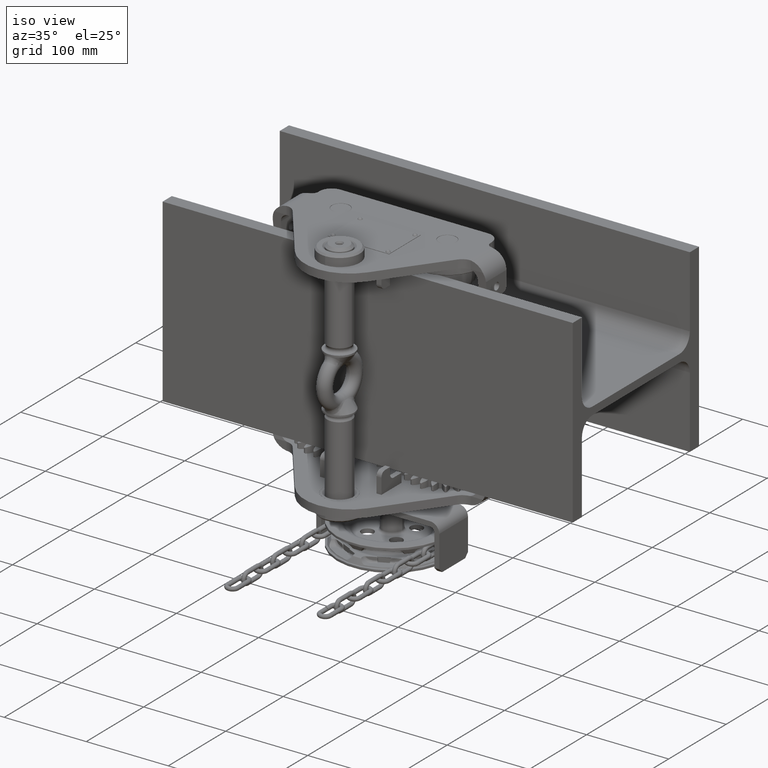
[diagram: clean part render]
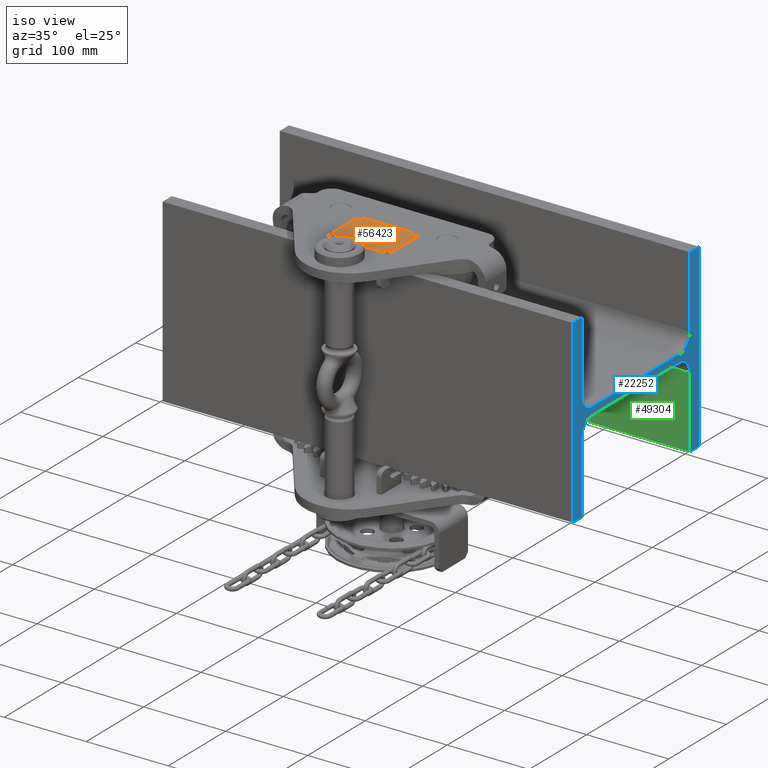
[diagram: same view with three faces highlighted in distinct colors, each labeled with its STEP entity id]
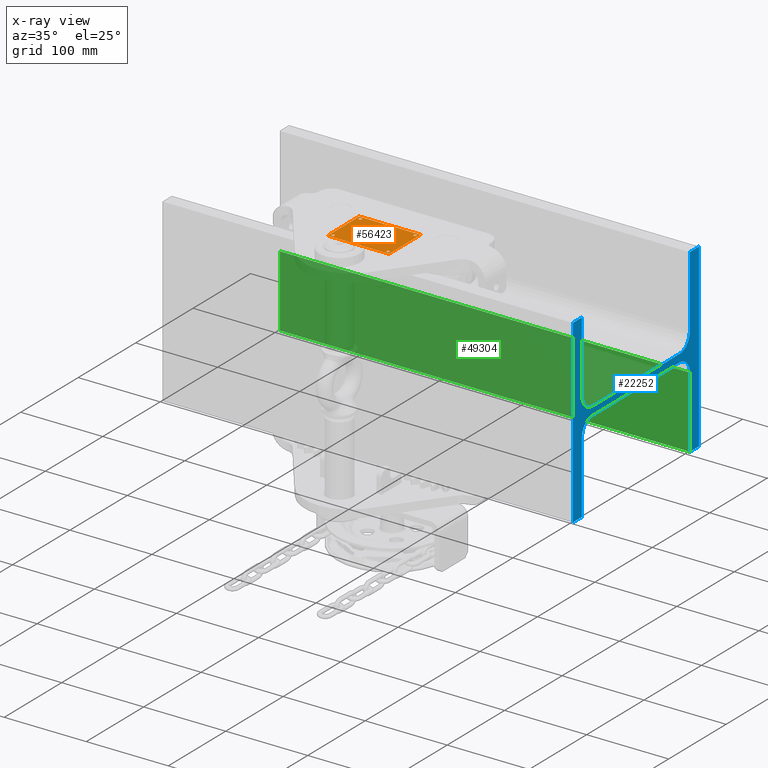
[diagram: x-ray of the same camera — body ghosted, the three highlighted faces saturated]
A machine part, iso view with three faces highlighted in distinct colors.
The next image is the same camera in x-ray (body ghosted, the three faces saturated) — at least one of them is partly hidden behind the body in this view.
Their STEP definitions:

[orange] entity #56423 — the highlighted planar face has unit normal (0, 0, -1).
#916 = AXIS2_PLACEMENT_3D ( 'NONE', #44228, #10586, #11320 ) ;
#1070 = ORIENTED_EDGE ( 'NONE', *, *, #31101, .F. ) ;
#1258 = EDGE_CURVE ( 'NONE', #96462, #48862, #73416, .T. ) ;
#2820 = EDGE_CURVE ( 'NONE', #25566, #58727, #81354, .T. ) ;
#4038 = DIRECTION ( 'NONE',  ( 1.000000000000000000, 0.0000000000000000000, 0.0000000000000000000 ) ) ;
#4072 = VECTOR ( 'NONE', #4038, 1000.000000000000000 ) ;
#4355 = CIRCLE ( 'NONE', #53322, 1.749999999999994700 ) ;
#4373 = CARTESIAN_POINT ( 'NONE',  ( -37.49999999999999300, -126.2990324144097700, 135.5000000000000000 ) ) ;
#4875 = CIRCLE ( 'NONE', #55349, 1.750000000000001600 ) ;
#6442 = DIRECTION ( 'NONE',  ( 1.000000000000000000, 0.0000000000000000000, 0.0000000000000000000 ) ) ;
#6600 = DIRECTION ( 'NONE',  ( -1.000000000000000000, 0.0000000000000000000, -0.0000000000000000000 ) ) ;
#8162 = DIRECTION ( 'NONE',  ( 0.0000000000000000000, 1.000000000000000000, 0.0000000000000000000 ) ) ;
#10465 = AXIS2_PLACEMENT_3D ( 'NONE', #59604, #98405, #35253 ) ;
#10586 = DIRECTION ( 'NONE',  ( 0.0000000000000000000, 0.0000000000000000000, 1.000000000000000000 ) ) ;
#11047 = EDGE_LOOP ( 'NONE', ( #45878, #41474 ) ) ;
#11233 = CARTESIAN_POINT ( 'NONE',  ( -37.49999999999999300, -126.2990324144097700, 135.5000000000000000 ) ) ;
#11320 = DIRECTION ( 'NONE',  ( 1.000000000000000000, 0.0000000000000000000, 0.0000000000000000000 ) ) ;
#11876 = CARTESIAN_POINT ( 'NONE',  ( 37.50000000000002100, -126.2990324144097700, 135.5000000000000000 ) ) ;
#12742 = CARTESIAN_POINT ( 'NONE',  ( -37.49999999999999300, -126.2990324144097700, 135.5000000000000000 ) ) ;
#15952 = FACE_BOUND ( 'NONE', #31548, .T. ) ;
#17796 = CARTESIAN_POINT ( 'NONE',  ( 33.50000000000001400, -122.2990324144097700, 135.5000000000000000 ) ) ;
#20381 = CARTESIAN_POINT ( 'NONE',  ( -35.24999999999999300, -122.2990324144097700, 135.5000000000000000 ) ) ;
#22285 = CARTESIAN_POINT ( 'NONE',  ( -37.49999999999999300, -71.29903241440976600, 135.5000000000000000 ) ) ;
#22952 = CARTESIAN_POINT ( 'NONE',  ( 35.25000000000000700, -75.29903241440975100, 135.5000000000000000 ) ) ;
#23682 = ORIENTED_EDGE ( 'NONE', *, *, #36969, .F. ) ;
#24672 = FACE_BOUND ( 'NONE', #35417, .T. ) ;
#25566 = VERTEX_POINT ( 'NONE', #39682 ) ;
#26970 = ORIENTED_EDGE ( 'NONE', *, *, #49784, .T. ) ;
#27273 = LINE ( 'NONE', #79842, #82255 ) ;
#27778 = CARTESIAN_POINT ( 'NONE',  ( 31.75000000000002100, -75.29903241440975100, 135.5000000000000000 ) ) ;
#28083 = DIRECTION ( 'NONE',  ( 1.000000000000000000, 0.0000000000000000000, 0.0000000000000000000 ) ) ;
#29707 = CIRCLE ( 'NONE', #916, 1.750000000000001600 ) ;
#30936 = DIRECTION ( 'NONE',  ( 0.0000000000000000000, 0.0000000000000000000, 1.000000000000000000 ) ) ;
#30965 = EDGE_CURVE ( 'NONE', #46223, #57460, #70653, .T. ) ;
#31101 = EDGE_CURVE ( 'NONE', #66856, #72474, #4355, .T. ) ;
#31548 = EDGE_LOOP ( 'NONE', ( #92344, #23682 ) ) ;
#31630 = AXIS2_PLACEMENT_3D ( 'NONE', #103322, #32857, #88341 ) ;
#32857 = DIRECTION ( 'NONE',  ( 0.0000000000000000000, 0.0000000000000000000, 1.000000000000000000 ) ) ;
#35068 = CARTESIAN_POINT ( 'NONE',  ( 31.75000000000002100, -122.2990324144097700, 135.5000000000000000 ) ) ;
#35253 = DIRECTION ( 'NONE',  ( 1.000000000000000000, 0.0000000000000000000, 0.0000000000000000000 ) ) ;
#35417 = EDGE_LOOP ( 'NONE', ( #86936, #81871 ) ) ;
#35953 = VERTEX_POINT ( 'NONE', #11876 ) ;
#36969 = EDGE_CURVE ( 'NONE', #58727, #25566, #4875, .T. ) ;
#37740 = CARTESIAN_POINT ( 'NONE',  ( 33.50000000000001400, -75.29903241440975100, 135.5000000000000000 ) ) ;
#38018 = CARTESIAN_POINT ( 'NONE',  ( 33.50000000000001400, -75.29903241440975100, 135.5000000000000000 ) ) ;
#38424 = DIRECTION ( 'NONE',  ( 0.0000000000000000000, 0.0000000000000000000, -1.000000000000000000 ) ) ;
#39682 = CARTESIAN_POINT ( 'NONE',  ( -31.74999999999998600, -75.29903241440975100, 135.5000000000000000 ) ) ;
#39790 = AXIS2_PLACEMENT_3D ( 'NONE', #37740, #94201, #62822 ) ;
#40290 = CARTESIAN_POINT ( 'NONE',  ( -35.24999999999999300, -75.29903241440975100, 135.5000000000000000 ) ) ;
#41063 = EDGE_CURVE ( 'NONE', #47613, #96462, #48011, .T. ) ;
#41474 = ORIENTED_EDGE ( 'NONE', *, *, #41739, .F. ) ;
#41739 = EDGE_CURVE ( 'NONE', #51741, #91406, #29707, .T. ) ;
#42414 = CIRCLE ( 'NONE', #89568, 1.749999999999994700 ) ;
#44228 = CARTESIAN_POINT ( 'NONE',  ( -33.49999999999998600, -122.2990324144097700, 135.5000000000000000 ) ) ;
#44804 = EDGE_CURVE ( 'NONE', #91406, #51741, #60180, .T. ) ;
#45878 = ORIENTED_EDGE ( 'NONE', *, *, #44804, .F. ) ;
#46223 = VERTEX_POINT ( 'NONE', #27778 ) ;
#47613 = VERTEX_POINT ( 'NONE', #54599 ) ;
#48011 = LINE ( 'NONE', #64002, #89297 ) ;
#48281 = EDGE_LOOP ( 'NONE', ( #80904, #26970, #58239, #69365 ) ) ;
#48862 = VERTEX_POINT ( 'NONE', #11233 ) ;
#49784 = EDGE_CURVE ( 'NONE', #48862, #35953, #77890, .T. ) ;
#51483 = AXIS2_PLACEMENT_3D ( 'NONE', #22285, #38424, #6600 ) ;
#51741 = VERTEX_POINT ( 'NONE', #20381 ) ;
#51939 = AXIS2_PLACEMENT_3D ( 'NONE', #38018, #94163, #92115 ) ;
#53269 = DIRECTION ( 'NONE',  ( -0.0000000000000000000, -1.000000000000000000, -0.0000000000000000000 ) ) ;
#53322 = AXIS2_PLACEMENT_3D ( 'NONE', #82953, #75978, #28083 ) ;
#54599 = CARTESIAN_POINT ( 'NONE',  ( 37.50000000000002100, -71.29903241440976600, 135.5000000000000000 ) ) ;
#55349 = AXIS2_PLACEMENT_3D ( 'NONE', #103180, #30936, #6442 ) ;
#56105 = EDGE_CURVE ( 'NONE', #72474, #66856, #42414, .T. ) ;
#56423 = ADVANCED_FACE ( 'NONE', ( #80940, #95981, #24672, #15952, #75982 ), #78943, .F. ) ;
#56698 = DIRECTION ( 'NONE',  ( -1.000000000000000000, -0.0000000000000000000, -0.0000000000000000000 ) ) ;
#57460 = VERTEX_POINT ( 'NONE', #22952 ) ;
#58239 = ORIENTED_EDGE ( 'NONE', *, *, #82971, .T. ) ;
#58727 = VERTEX_POINT ( 'NONE', #40290 ) ;
#59604 = CARTESIAN_POINT ( 'NONE',  ( -33.49999999999998600, -75.29903241440975100, 135.5000000000000000 ) ) ;
#60180 = CIRCLE ( 'NONE', #31630, 1.750000000000001600 ) ;
#62822 = DIRECTION ( 'NONE',  ( 1.000000000000000000, 0.0000000000000000000, 0.0000000000000000000 ) ) ;
#64002 = CARTESIAN_POINT ( 'NONE',  ( -37.49999999999999300, -71.29903241440976600, 135.5000000000000000 ) ) ;
#65026 = DIRECTION ( 'NONE',  ( 0.0000000000000000000, 0.0000000000000000000, 1.000000000000000000 ) ) ;
#66856 = VERTEX_POINT ( 'NONE', #35068 ) ;
#68457 = VECTOR ( 'NONE', #53269, 1000.000000000000000 ) ;
#69365 = ORIENTED_EDGE ( 'NONE', *, *, #41063, .T. ) ;
#69441 = CARTESIAN_POINT ( 'NONE',  ( 35.25000000000000700, -122.2990324144097700, 135.5000000000000000 ) ) ;
#70653 = CIRCLE ( 'NONE', #51939, 1.749999999999994700 ) ;
#72474 = VERTEX_POINT ( 'NONE', #69441 ) ;
#73416 = LINE ( 'NONE', #12742, #68457 ) ;
#75978 = DIRECTION ( 'NONE',  ( 0.0000000000000000000, 0.0000000000000000000, 1.000000000000000000 ) ) ;
#75982 = FACE_OUTER_BOUND ( 'NONE', #48281, .T. ) ;
#77890 = LINE ( 'NONE', #4373, #4072 ) ;
#78943 = PLANE ( 'NONE',  #51483 ) ;
#79842 = CARTESIAN_POINT ( 'NONE',  ( 37.50000000000002100, -126.2990324144097700, 135.5000000000000000 ) ) ;
#80904 = ORIENTED_EDGE ( 'NONE', *, *, #1258, .T. ) ;
#80940 = FACE_BOUND ( 'NONE', #90154, .T. ) ;
#81354 = CIRCLE ( 'NONE', #10465, 1.750000000000001600 ) ;
#81871 = ORIENTED_EDGE ( 'NONE', *, *, #30965, .F. ) ;
#82255 = VECTOR ( 'NONE', #8162, 1000.000000000000000 ) ;
#82953 = CARTESIAN_POINT ( 'NONE',  ( 33.50000000000001400, -122.2990324144097700, 135.5000000000000000 ) ) ;
#82971 = EDGE_CURVE ( 'NONE', #35953, #47613, #27273, .T. ) ;
#85171 = CIRCLE ( 'NONE', #39790, 1.749999999999994700 ) ;
#86936 = ORIENTED_EDGE ( 'NONE', *, *, #93856, .F. ) ;
#88341 = DIRECTION ( 'NONE',  ( 1.000000000000000000, 0.0000000000000000000, 0.0000000000000000000 ) ) ;
#89297 = VECTOR ( 'NONE', #56698, 1000.000000000000000 ) ;
#89568 = AXIS2_PLACEMENT_3D ( 'NONE', #17796, #65026, #97465 ) ;
#90154 = EDGE_LOOP ( 'NONE', ( #102868, #1070 ) ) ;
#91406 = VERTEX_POINT ( 'NONE', #92824 ) ;
#92115 = DIRECTION ( 'NONE',  ( 1.000000000000000000, 0.0000000000000000000, 0.0000000000000000000 ) ) ;
#92344 = ORIENTED_EDGE ( 'NONE', *, *, #2820, .F. ) ;
#92824 = CARTESIAN_POINT ( 'NONE',  ( -31.74999999999998600, -122.2990324144097700, 135.5000000000000000 ) ) ;
#93856 = EDGE_CURVE ( 'NONE', #57460, #46223, #85171, .T. ) ;
#94163 = DIRECTION ( 'NONE',  ( 0.0000000000000000000, 0.0000000000000000000, 1.000000000000000000 ) ) ;
#94201 = DIRECTION ( 'NONE',  ( 0.0000000000000000000, 0.0000000000000000000, 1.000000000000000000 ) ) ;
#95981 = FACE_BOUND ( 'NONE', #11047, .T. ) ;
#96462 = VERTEX_POINT ( 'NONE', #98111 ) ;
#97465 = DIRECTION ( 'NONE',  ( 1.000000000000000000, 0.0000000000000000000, 0.0000000000000000000 ) ) ;
#98111 = CARTESIAN_POINT ( 'NONE',  ( -37.49999999999999300, -71.29903241440976600, 135.5000000000000000 ) ) ;
#98405 = DIRECTION ( 'NONE',  ( 0.0000000000000000000, 0.0000000000000000000, 1.000000000000000000 ) ) ;
#102868 = ORIENTED_EDGE ( 'NONE', *, *, #56105, .F. ) ;
#103180 = CARTESIAN_POINT ( 'NONE',  ( -33.49999999999998600, -75.29903241440975100, 135.5000000000000000 ) ) ;
#103322 = CARTESIAN_POINT ( 'NONE',  ( -33.49999999999998600, -122.2990324144097700, 135.5000000000000000 ) ) ;

[blue] entity #22252 — the highlighted planar face has unit normal (-1, -0, -0).
#1134 = VERTEX_POINT ( 'NONE', #64854 ) ;
#1840 = EDGE_CURVE ( 'NONE', #89484, #96797, #20530, .T. ) ;
#2302 = VECTOR ( 'NONE', #13761, 1000.000000000000000 ) ;
#2948 = AXIS2_PLACEMENT_3D ( 'NONE', #22731, #30505, #29802 ) ;
#3343 = EDGE_CURVE ( 'NONE', #102690, #33900, #71585, .T. ) ;
#4357 = DIRECTION ( 'NONE',  ( -1.000000000000000000, -2.480507177830958500E-050, -1.925929944387235900E-034 ) ) ;
#5509 = EDGE_CURVE ( 'NONE', #1134, #12308, #35944, .T. ) ;
#6954 = CARTESIAN_POINT ( 'NONE',  ( 250.0000000000000000, 110.0000000000000700, -109.9999999999995600 ) ) ;
#7259 = LINE ( 'NONE', #69012, #2302 ) ;
#7995 = ORIENTED_EDGE ( 'NONE', *, *, #91104, .F. ) ;
#10172 = ORIENTED_EDGE ( 'NONE', *, *, #39502, .T. ) ;
#10705 = ORIENTED_EDGE ( 'NONE', *, *, #102140, .T. ) ;
#11075 = LINE ( 'NONE', #69443, #93605 ) ;
#12067 = CARTESIAN_POINT ( 'NONE',  ( 250.0000000000000000, -93.99999999999994300, 110.0000000000004000 ) ) ;
#12277 = CARTESIAN_POINT ( 'NONE',  ( 250.0000000000000000, 94.00000000000000000, 22.75000000000047300 ) ) ;
#12308 = VERTEX_POINT ( 'NONE', #13998 ) ;
#13193 = DIRECTION ( 'NONE',  ( -1.000000000000000000, -0.0000000000000000000, -7.703719777548941700E-034 ) ) ;
#13614 = AXIS2_PLACEMENT_3D ( 'NONE', #20845, #13193, #53394 ) ;
#13761 = DIRECTION ( 'NONE',  ( 0.0000000000000000000, 1.000000000000000000, 4.293176542341493300E-017 ) ) ;
#13945 = LINE ( 'NONE', #6954, #54003 ) ;
#13998 = CARTESIAN_POINT ( 'NONE',  ( 250.0000000000000000, -75.99999999999992900, -4.749999999999571900 ) ) ;
#15714 = VECTOR ( 'NONE', #28019, 1000.000000000000000 ) ;
#16023 = DIRECTION ( 'NONE',  ( -1.925929944387235900E-034, -4.293176542341593100E-017, 1.000000000000000000 ) ) ;
#16715 = CARTESIAN_POINT ( 'NONE',  ( 250.0000000000000000, -93.99999999999994300, 110.0000000000004000 ) ) ;
#18798 = EDGE_CURVE ( 'NONE', #89794, #46084, #26054, .T. ) ;
#19496 = CARTESIAN_POINT ( 'NONE',  ( 250.0000000000000000, -75.99999999999970200, 4.750000000000429000 ) ) ;
#19756 = CARTESIAN_POINT ( 'NONE',  ( 250.0000000000000000, -75.99999999999970200, 22.75000000000046200 ) ) ;
#20148 = DIRECTION ( 'NONE',  ( 0.0000000000000000000, 1.000000000000000000, 4.293176542341493300E-017 ) ) ;
#20530 = LINE ( 'NONE', #68565, #21722 ) ;
#20606 = DIRECTION ( 'NONE',  ( 1.925929944387235900E-034, 4.554710308673295900E-016, -1.000000000000000000 ) ) ;
#20845 = CARTESIAN_POINT ( 'NONE',  ( 250.0000000000000000, -75.99999999999992900, -22.74999999999957700 ) ) ;
#21471 = CARTESIAN_POINT ( 'NONE',  ( 250.0000000000000000, -93.99999999999971600, 22.75000000000039400 ) ) ;
#21722 = VECTOR ( 'NONE', #20606, 1000.000000000000000 ) ;
#22252 = ADVANCED_FACE ( 'NONE', ( #100360 ), #92058, .F. ) ;
#22731 = CARTESIAN_POINT ( 'NONE',  ( 250.0000000000000000, 75.99999999999995700, 22.75000000000047300 ) ) ;
#22869 = CARTESIAN_POINT ( 'NONE',  ( 250.0000000000000000, -93.99999999999990100, -109.9999999999996300 ) ) ;
#23330 = CARTESIAN_POINT ( 'NONE',  ( 250.0000000000000000, 94.00000000000000000, 22.75000000000047300 ) ) ;
#24540 = CIRCLE ( 'NONE', #83011, 18.00000000000001400 ) ;
#25501 = VERTEX_POINT ( 'NONE', #22869 ) ;
#26054 = LINE ( 'NONE', #68110, #64888 ) ;
#26511 = ORIENTED_EDGE ( 'NONE', *, *, #88492, .F. ) ;
#27578 = VERTEX_POINT ( 'NONE', #51267 ) ;
#28019 = DIRECTION ( 'NONE',  ( -1.925929944387235900E-034, -1.622250703616490400E-016, 1.000000000000000000 ) ) ;
#28672 = ORIENTED_EDGE ( 'NONE', *, *, #3343, .F. ) ;
#29186 = CARTESIAN_POINT ( 'NONE',  ( 250.0000000000000000, -110.0000000000000000, 110.0000000000003800 ) ) ;
#29779 = EDGE_CURVE ( 'NONE', #25501, #1134, #57100, .T. ) ;
#29802 = DIRECTION ( 'NONE',  ( 0.0000000000000000000, 0.0000000000000000000, -1.000000000000000000 ) ) ;
#30505 = DIRECTION ( 'NONE',  ( 1.000000000000000000, 0.0000000000000000000, 7.703719777548941700E-034 ) ) ;
#33900 = VERTEX_POINT ( 'NONE', #89909 ) ;
#34178 = CARTESIAN_POINT ( 'NONE',  ( 250.0000000000000000, -109.9999999999999000, -109.9999999999996200 ) ) ;
#34634 = DIRECTION ( 'NONE',  ( 1.000000000000000000, 0.0000000000000000000, 7.703719777548941700E-034 ) ) ;
#35944 = CIRCLE ( 'NONE', #13614, 18.00000000000000000 ) ;
#36137 = LINE ( 'NONE', #12277, #101008 ) ;
#39502 = EDGE_CURVE ( 'NONE', #89718, #48224, #39552, .T. ) ;
#39552 = LINE ( 'NONE', #101790, #51994 ) ;
#40422 = ORIENTED_EDGE ( 'NONE', *, *, #103012, .F. ) ;
#41286 = CARTESIAN_POINT ( 'NONE',  ( 250.0000000000000000, 93.99999999999997200, 110.0000000000004500 ) ) ;
#43695 = CIRCLE ( 'NONE', #44937, 17.99999999999997500 ) ;
#44937 = AXIS2_PLACEMENT_3D ( 'NONE', #74403, #34634, #90512 ) ;
#45034 = DIRECTION ( 'NONE',  ( 3.340955887615240800E-049, 1.000000000000000000, -1.691791710553390200E-015 ) ) ;
#46084 = VERTEX_POINT ( 'NONE', #82988 ) ;
#46668 = DIRECTION ( 'NONE',  ( 1.925929944387235900E-034, 6.791627250939927600E-016, -1.000000000000000000 ) ) ;
#48224 = VERTEX_POINT ( 'NONE', #52727 ) ;
#50270 = VECTOR ( 'NONE', #66288, 1000.000000000000000 ) ;
#50563 = CIRCLE ( 'NONE', #2948, 18.00000000000002500 ) ;
#51267 = CARTESIAN_POINT ( 'NONE',  ( 250.0000000000000000, 75.99999999999998600, -4.749999999999552400 ) ) ;
#51310 = DIRECTION ( 'NONE',  ( 1.000000000000000000, 0.0000000000000000000, 7.703719777548941700E-034 ) ) ;
#51994 = VECTOR ( 'NONE', #46668, 1000.000000000000000 ) ;
#52240 = CARTESIAN_POINT ( 'NONE',  ( 250.0000000000000000, -75.99999999999992900, -22.74999999999957700 ) ) ;
#52727 = CARTESIAN_POINT ( 'NONE',  ( 250.0000000000000000, 94.00000000000005700, -109.9999999999995300 ) ) ;
#53394 = DIRECTION ( 'NONE',  ( 0.0000000000000000000, 0.0000000000000000000, 1.000000000000000000 ) ) ;
#54003 = VECTOR ( 'NONE', #16023, 1000.000000000000000 ) ;
#57100 = LINE ( 'NONE', #75900, #15714 ) ;
#57355 = EDGE_LOOP ( 'NONE', ( #100157, #83695, #97283, #26511, #10172, #10705, #81196, #103527, #74466, #7995, #28672, #79490, #87406, #40422, #94793, #82587 ) ) ;
#57694 = DIRECTION ( 'NONE',  ( 1.925929944387235900E-034, 2.667384474064545400E-015, -1.000000000000000000 ) ) ;
#57809 = VERTEX_POINT ( 'NONE', #12067 ) ;
#64854 = CARTESIAN_POINT ( 'NONE',  ( 250.0000000000000000, -93.99999999999991500, -22.74999999999958100 ) ) ;
#64888 = VECTOR ( 'NONE', #20148, 1000.000000000000000 ) ;
#66288 = DIRECTION ( 'NONE',  ( -1.670477943807616000E-049, 1.000000000000000000, 9.102935034118153400E-016 ) ) ;
#68110 = CARTESIAN_POINT ( 'NONE',  ( 250.0000000000000000, 93.99999999999997200, 110.0000000000004500 ) ) ;
#68347 = AXIS2_PLACEMENT_3D ( 'NONE', #52240, #4357, #76367 ) ;
#68444 = VECTOR ( 'NONE', #57694, 1000.000000000000000 ) ;
#68565 = CARTESIAN_POINT ( 'NONE',  ( 250.0000000000000000, -110.0000000000000000, 110.0000000000003800 ) ) ;
#69012 = CARTESIAN_POINT ( 'NONE',  ( 250.0000000000000000, -75.99999999999992900, -4.749999999999571900 ) ) ;
#69443 = CARTESIAN_POINT ( 'NONE',  ( 250.0000000000000000, 94.00000000000005700, -109.9999999999995300 ) ) ;
#71504 = LINE ( 'NONE', #97673, #50270 ) ;
#71585 = LINE ( 'NONE', #19496, #87807 ) ;
#74114 = DIRECTION ( 'NONE',  ( 1.670477943807623000E-049, 1.000000000000000000, -8.244299725649890000E-016 ) ) ;
#74403 = CARTESIAN_POINT ( 'NONE',  ( 250.0000000000000000, 75.99999999999998600, -22.74999999999952700 ) ) ;
#74466 = ORIENTED_EDGE ( 'NONE', *, *, #81310, .F. ) ;
#74862 = DIRECTION ( 'NONE',  ( -1.925929944387235900E-034, -3.610472452587044400E-016, 1.000000000000000000 ) ) ;
#75370 = CARTESIAN_POINT ( 'NONE',  ( 250.0000000000000000, 110.0000000000000700, -109.9999999999995600 ) ) ;
#75494 = DIRECTION ( 'NONE',  ( 0.0000000000000000000, 1.000000000000000000, 4.293176542341493300E-017 ) ) ;
#75900 = CARTESIAN_POINT ( 'NONE',  ( 250.0000000000000000, -93.99999999999990100, -109.9999999999996300 ) ) ;
#76367 = DIRECTION ( 'NONE',  ( -1.925929944387235900E-034, -4.293176542341593100E-017, 1.000000000000000000 ) ) ;
#76373 = VERTEX_POINT ( 'NONE', #23330 ) ;
#79490 = ORIENTED_EDGE ( 'NONE', *, *, #87483, .F. ) ;
#80727 = CARTESIAN_POINT ( 'NONE',  ( 250.0000000000000000, -109.9999999999999000, -109.9999999999996200 ) ) ;
#81196 = ORIENTED_EDGE ( 'NONE', *, *, #92201, .T. ) ;
#81310 = EDGE_CURVE ( 'NONE', #76373, #89794, #36137, .T. ) ;
#82587 = ORIENTED_EDGE ( 'NONE', *, *, #86813, .T. ) ;
#82988 = CARTESIAN_POINT ( 'NONE',  ( 250.0000000000000000, 110.0000000000000700, 110.0000000000004500 ) ) ;
#83011 = AXIS2_PLACEMENT_3D ( 'NONE', #19756, #51310, #91133 ) ;
#83695 = ORIENTED_EDGE ( 'NONE', *, *, #5509, .T. ) ;
#86813 = EDGE_CURVE ( 'NONE', #96797, #25501, #90890, .T. ) ;
#87406 = ORIENTED_EDGE ( 'NONE', *, *, #100582, .F. ) ;
#87483 = EDGE_CURVE ( 'NONE', #92612, #102690, #24540, .T. ) ;
#87807 = VECTOR ( 'NONE', #75494, 1000.000000000000000 ) ;
#88492 = EDGE_CURVE ( 'NONE', #89718, #27578, #43695, .T. ) ;
#89484 = VERTEX_POINT ( 'NONE', #29186 ) ;
#89718 = VERTEX_POINT ( 'NONE', #91606 ) ;
#89794 = VERTEX_POINT ( 'NONE', #41286 ) ;
#89909 = CARTESIAN_POINT ( 'NONE',  ( 250.0000000000000000, 75.99999999999995700, 4.750000000000435200 ) ) ;
#90512 = DIRECTION ( 'NONE',  ( 0.0000000000000000000, 0.0000000000000000000, -1.000000000000000000 ) ) ;
#90890 = LINE ( 'NONE', #80727, #99555 ) ;
#91104 = EDGE_CURVE ( 'NONE', #33900, #76373, #50563, .T. ) ;
#91133 = DIRECTION ( 'NONE',  ( 0.0000000000000000000, 0.0000000000000000000, -1.000000000000000000 ) ) ;
#91606 = CARTESIAN_POINT ( 'NONE',  ( 250.0000000000000000, 94.00000000000000000, -22.74999999999952000 ) ) ;
#92058 = PLANE ( 'NONE',  #68347 ) ;
#92201 = EDGE_CURVE ( 'NONE', #92526, #46084, #13945, .T. ) ;
#92526 = VERTEX_POINT ( 'NONE', #75370 ) ;
#92612 = VERTEX_POINT ( 'NONE', #21471 ) ;
#93605 = VECTOR ( 'NONE', #45034, 1000.000000000000000 ) ;
#94793 = ORIENTED_EDGE ( 'NONE', *, *, #1840, .T. ) ;
#96797 = VERTEX_POINT ( 'NONE', #34178 ) ;
#97283 = ORIENTED_EDGE ( 'NONE', *, *, #103288, .T. ) ;
#97673 = CARTESIAN_POINT ( 'NONE',  ( 250.0000000000000000, -110.0000000000000000, 110.0000000000003800 ) ) ;
#99555 = VECTOR ( 'NONE', #74114, 1000.000000000000000 ) ;
#100157 = ORIENTED_EDGE ( 'NONE', *, *, #29779, .T. ) ;
#100360 = FACE_OUTER_BOUND ( 'NONE', #57355, .T. ) ;
#100582 = EDGE_CURVE ( 'NONE', #57809, #92612, #103331, .T. ) ;
#101008 = VECTOR ( 'NONE', #74862, 1000.000000000000000 ) ;
#101790 = CARTESIAN_POINT ( 'NONE',  ( 250.0000000000000000, 94.00000000000000000, -22.74999999999952000 ) ) ;
#102140 = EDGE_CURVE ( 'NONE', #48224, #92526, #11075, .T. ) ;
#102690 = VERTEX_POINT ( 'NONE', #102799 ) ;
#102799 = CARTESIAN_POINT ( 'NONE',  ( 250.0000000000000000, -75.99999999999970200, 4.750000000000446800 ) ) ;
#103012 = EDGE_CURVE ( 'NONE', #89484, #57809, #71504, .T. ) ;
#103288 = EDGE_CURVE ( 'NONE', #12308, #27578, #7259, .T. ) ;
#103331 = LINE ( 'NONE', #16715, #68444 ) ;
#103527 = ORIENTED_EDGE ( 'NONE', *, *, #18798, .F. ) ;

[green] entity #49304 — the highlighted planar face has unit normal (0, -1, -0).
#12689 = EDGE_CURVE ( 'NONE', #26076, #48224, #56896, .T. ) ;
#16553 = ORIENTED_EDGE ( 'NONE', *, *, #39502, .F. ) ;
#17389 = PLANE ( 'NONE',  #91413 ) ;
#18783 = CARTESIAN_POINT ( 'NONE',  ( -250.0000000000001100, 94.00000000000005700, -109.9999999999995300 ) ) ;
#20550 = CARTESIAN_POINT ( 'NONE',  ( -250.0000000000001100, 94.00000000000000000, -22.74999999999952000 ) ) ;
#25177 = ORIENTED_EDGE ( 'NONE', *, *, #12689, .T. ) ;
#26076 = VERTEX_POINT ( 'NONE', #42078 ) ;
#33928 = CARTESIAN_POINT ( 'NONE',  ( -250.0000000000001100, 94.00000000000000000, -22.74999999999952000 ) ) ;
#36078 = DIRECTION ( 'NONE',  ( 1.000000000000000000, 0.0000000000000000000, 7.703719777548941700E-034 ) ) ;
#39502 = EDGE_CURVE ( 'NONE', #89718, #48224, #39552, .T. ) ;
#39552 = LINE ( 'NONE', #101790, #51994 ) ;
#41324 = VERTEX_POINT ( 'NONE', #20550 ) ;
#42078 = CARTESIAN_POINT ( 'NONE',  ( -250.0000000000001100, 94.00000000000005700, -109.9999999999995300 ) ) ;
#42264 = ORIENTED_EDGE ( 'NONE', *, *, #69818, .T. ) ;
#42428 = VECTOR ( 'NONE', #68600, 1000.000000000000000 ) ;
#46668 = DIRECTION ( 'NONE',  ( 1.925929944387235900E-034, 6.791627250939927600E-016, -1.000000000000000000 ) ) ;
#48224 = VERTEX_POINT ( 'NONE', #52727 ) ;
#48619 = LINE ( 'NONE', #67935, #42428 ) ;
#49304 = ADVANCED_FACE ( 'NONE', ( #71772 ), #17389, .T. ) ;
#51994 = VECTOR ( 'NONE', #46668, 1000.000000000000000 ) ;
#52727 = CARTESIAN_POINT ( 'NONE',  ( 250.0000000000000000, 94.00000000000005700, -109.9999999999995300 ) ) ;
#56896 = LINE ( 'NONE', #18783, #96828 ) ;
#65028 = ORIENTED_EDGE ( 'NONE', *, *, #66924, .F. ) ;
#66924 = EDGE_CURVE ( 'NONE', #41324, #89718, #75793, .T. ) ;
#67935 = CARTESIAN_POINT ( 'NONE',  ( -250.0000000000001100, 94.00000000000000000, -22.74999999999952000 ) ) ;
#68309 = VECTOR ( 'NONE', #36078, 1000.000000000000000 ) ;
#68600 = DIRECTION ( 'NONE',  ( 1.925929944387235900E-034, 6.791627250939927600E-016, -1.000000000000000000 ) ) ;
#69616 = EDGE_LOOP ( 'NONE', ( #16553, #65028, #42264, #25177 ) ) ;
#69818 = EDGE_CURVE ( 'NONE', #41324, #26076, #48619, .T. ) ;
#71772 = FACE_OUTER_BOUND ( 'NONE', #69616, .T. ) ;
#73696 = DIRECTION ( 'NONE',  ( 1.225336256775793600E-049, -1.000000000000000000, -6.791627250939927600E-016 ) ) ;
#74473 = CARTESIAN_POINT ( 'NONE',  ( -250.0000000000001100, 94.00000000000000000, -22.74999999999952000 ) ) ;
#75793 = LINE ( 'NONE', #74473, #68309 ) ;
#82427 = DIRECTION ( 'NONE',  ( 1.925929944387235900E-034, 6.791627250939927600E-016, -1.000000000000000000 ) ) ;
#89718 = VERTEX_POINT ( 'NONE', #91606 ) ;
#90834 = DIRECTION ( 'NONE',  ( 1.000000000000000000, 0.0000000000000000000, 7.703719777548941700E-034 ) ) ;
#91413 = AXIS2_PLACEMENT_3D ( 'NONE', #33928, #73696, #82427 ) ;
#91606 = CARTESIAN_POINT ( 'NONE',  ( 250.0000000000000000, 94.00000000000000000, -22.74999999999952000 ) ) ;
#96828 = VECTOR ( 'NONE', #90834, 1000.000000000000000 ) ;
#101790 = CARTESIAN_POINT ( 'NONE',  ( 250.0000000000000000, 94.00000000000000000, -22.74999999999952000 ) ) ;